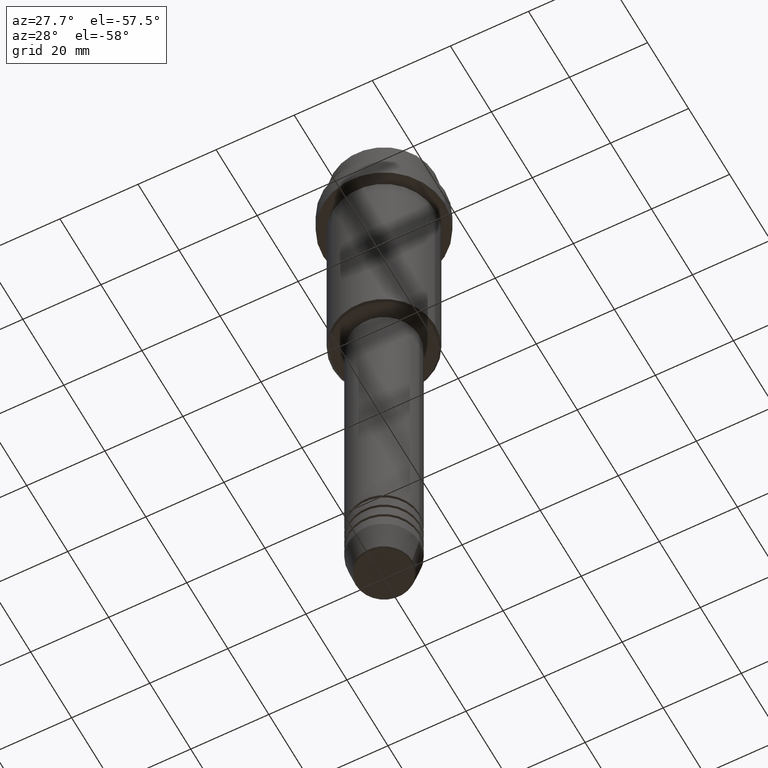
[diagram: clean part render]
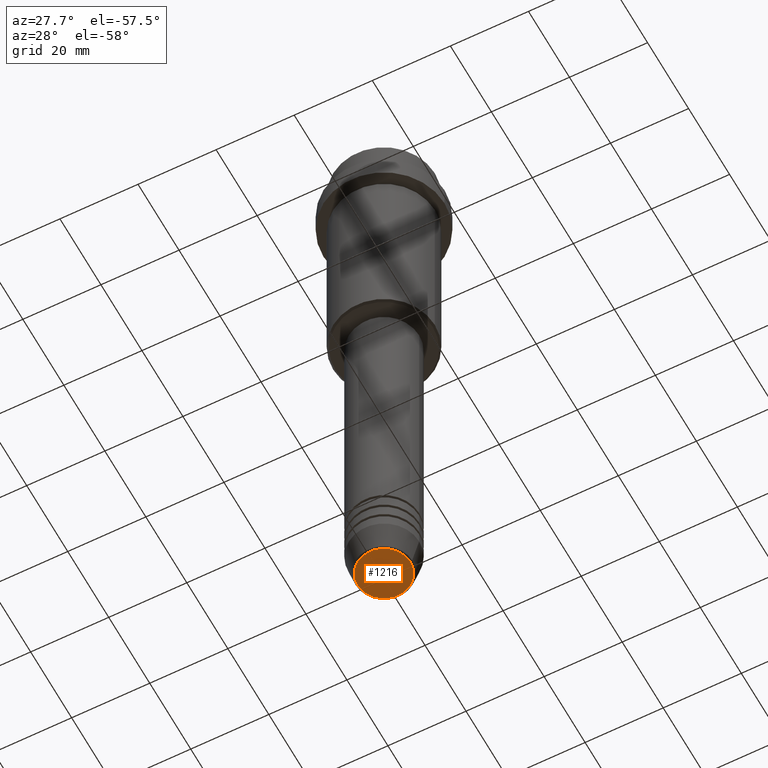
[diagram: same view with one face highlighted and labeled with its STEP entity id]
A machine part, auxiliary view. The second image highlights one B-rep face of the part: STEP entity #1216.
In plain terms, the highlighted planar face has unit normal (0, -0, 1).
Its self-contained STEP definition (entity closure, byte-faithful):
#50 = CARTESIAN_POINT ( 'NONE',  ( 6.740692158992658278, 0.000000000000000000, -160.0000000000000000 ) ) ;
#53 = AXIS2_PLACEMENT_3D ( 'NONE', #237, #357, #680 ) ;
#96 = EDGE_LOOP ( 'NONE', ( #124, #850 ) ) ;
#124 = ORIENTED_EDGE ( 'NONE', *, *, #624, .T. ) ;
#195 = CIRCLE ( 'NONE', #997, 6.740692158992658278 ) ;
#214 = CARTESIAN_POINT ( 'NONE',  ( -6.740692158992658278, 8.550696569392685681E-16, -160.0000000000000000 ) ) ;
#237 = CARTESIAN_POINT ( 'NONE',  ( 0.000000000000000000, 0.000000000000000000, -160.0000000000000000 ) ) ;
#357 = DIRECTION ( 'NONE',  ( 0.000000000000000000, -0.000000000000000000, 1.000000000000000000 ) ) ;
#604 = AXIS2_PLACEMENT_3D ( 'NONE', #800, #792, #1232 ) ;
#614 = CARTESIAN_POINT ( 'NONE',  ( 0.000000000000000000, 0.000000000000000000, -160.0000000000000000 ) ) ;
#624 = EDGE_CURVE ( 'NONE', #1403, #769, #195, .T. ) ;
#680 = DIRECTION ( 'NONE',  ( 1.000000000000000000, 0.000000000000000000, 0.000000000000000000 ) ) ;
#761 = FACE_OUTER_BOUND ( 'NONE', #96, .T. ) ;
#769 = VERTEX_POINT ( 'NONE', #214 ) ;
#792 = DIRECTION ( 'NONE',  ( 0.000000000000000000, 0.000000000000000000, -1.000000000000000000 ) ) ;
#800 = CARTESIAN_POINT ( 'NONE',  ( 0.000000000000000000, 0.000000000000000000, -160.0000000000000000 ) ) ;
#850 = ORIENTED_EDGE ( 'NONE', *, *, #1277, .T. ) ;
#872 = PLANE ( 'NONE',  #53 ) ;
#939 = DIRECTION ( 'NONE',  ( 0.000000000000000000, 0.000000000000000000, -1.000000000000000000 ) ) ;
#946 = DIRECTION ( 'NONE',  ( 1.000000000000000000, 0.000000000000000000, 0.000000000000000000 ) ) ;
#997 = AXIS2_PLACEMENT_3D ( 'NONE', #614, #939, #946 ) ;
#1216 = ADVANCED_FACE ( 'NONE', ( #761 ), #872, .F. ) ;
#1232 = DIRECTION ( 'NONE',  ( 1.000000000000000000, 0.000000000000000000, 0.000000000000000000 ) ) ;
#1277 = EDGE_CURVE ( 'NONE', #769, #1403, #1354, .T. ) ;
#1354 = CIRCLE ( 'NONE', #604, 6.740692158992658278 ) ;
#1403 = VERTEX_POINT ( 'NONE', #50 ) ;